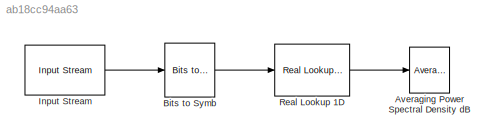
MODEL slx_ab18cc94aa63
KIND model
CONFIG AbsTol = auto
CONFIG EnableMultiTasking = off
CONFIG FixedStep = auto
CONFIG MaxStep = auto
CONFIG MinStep = auto
CONFIG RelTol = 1e-3
CONFIG SampleTimeConstraint = Unconstrained
CONFIG SolverName = VariableStepAuto
CONFIG StartTime = 0.0
CONFIG StopTime = 10000
BLOCK [Reference] Averaging Power Spectral Density dB  REF=dsp_blocks/Sources//Sinks/Averaging
Power Spectral
Density dB
  Ports = [1]
  SourceBlock = dsp_blocks/Sources//Sinks/Averaging\nPower Spectral\nDensity dB
  SourceType = Spectrum Analyzer
BLOCK [Reference] Bits to Symb  REF=dsp_blocks/Conversions/Bits to Symb
  Ports = [1, 1]
  SourceBlock = dsp_blocks/Conversions/Bits to Symb
BLOCK [Reference] Input Stream  REF=dsp_blocks/Sources//Sinks/Input Stream
  Ports = [0, 1]
  SourceBlock = dsp_blocks/Sources//Sinks/Input Stream
BLOCK [Reference] Real Lookup 1D  REF=dsp_blocks/Conversions/Real Lookup 1D
  Ports = [1, 1]
  SourceBlock = dsp_blocks/Conversions/Real Lookup 1D
LINE Bits to Symb:1 -> Real Lookup 1D:1
LINE Input Stream:1 -> Bits to Symb:1
LINE Real Lookup 1D:1 -> Averaging Power Spectral Density dB:1
